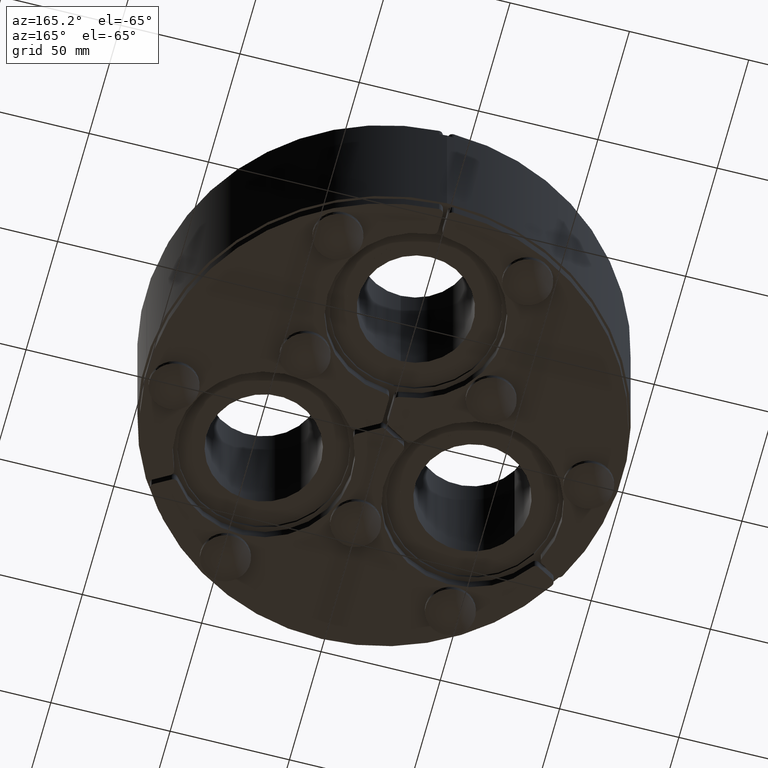
[diagram: clean part render]
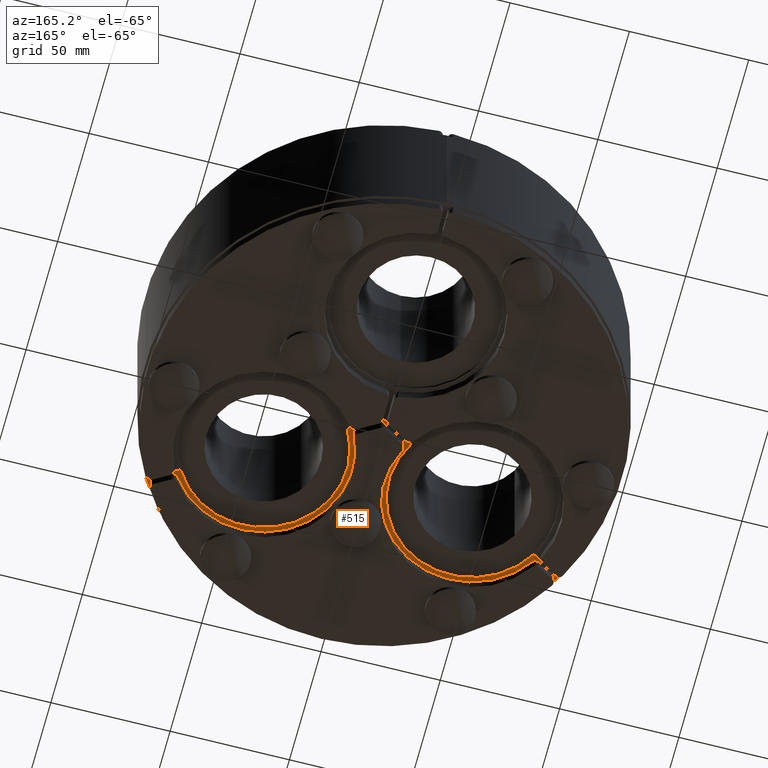
[diagram: same view with one face highlighted and labeled with its STEP entity id]
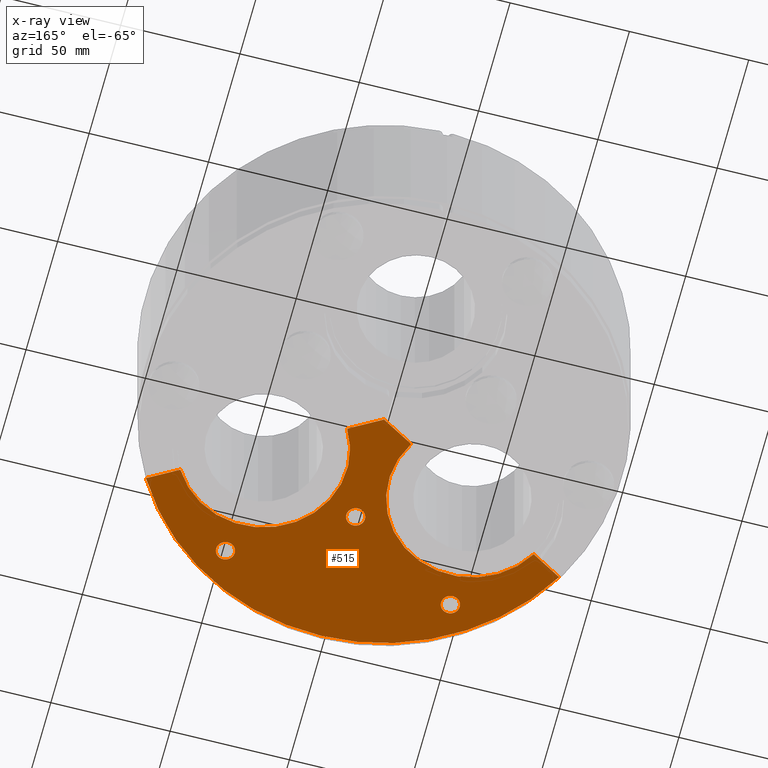
[diagram: x-ray of the same camera — body ghosted, the highlighted face saturated]
A machine part, auxiliary view. The second image highlights one B-rep face of the part: STEP entity #515.
The next image is the same camera in x-ray: the body ghosted, the highlighted face saturated — about 0% of this face is hidden behind the body in this view.
In plain terms, the highlighted planar face has unit normal (0, 0, 1).
Its self-contained STEP definition (entity closure, byte-faithful):
#190=CARTESIAN_POINT('',(-8.391542E-015,-5.884182E-014,-32.5));
#191=VERTEX_POINT('',#190);
#192=CARTESIAN_POINT('',(13.423393758658463,-7.749999999999854,-32.5));
#193=VERTEX_POINT('',#192);
#194=CARTESIAN_POINT('',(-7.105427E-015,-4.263256E-014,-32.499999999999993));
#195=DIRECTION('',(0.866025403784439,-0.5,0.0));
#196=VECTOR('',#195,15.499999999999615);
#197=LINE('',#194,#196);
#198=EDGE_CURVE('',#191,#193,#197,.T.);
#230=CARTESIAN_POINT('',(-74.045172023569634,-42.750000000000114,-32.5));
#231=VERTEX_POINT('',#230);
#240=CARTESIAN_POINT('',(-86.602540378444019,-50.000000000000128,-32.5));
#241=VERTEX_POINT('',#240);
#242=CARTESIAN_POINT('',(-86.602540378444004,-50.000000000000121,-32.5));
#243=DIRECTION('',(0.866025403784439,0.5,0.0));
#244=VECTOR('',#243,14.500000000000025);
#245=LINE('',#242,#244);
#246=EDGE_CURVE('',#241,#231,#245,.T.);
#270=CARTESIAN_POINT('',(86.602540378443507,-49.999999999999744,-32.5));
#271=VERTEX_POINT('',#270);
#280=CARTESIAN_POINT('',(74.045172023569222,-42.749999999999815,-32.5));
#281=VERTEX_POINT('',#280);
#282=CARTESIAN_POINT('',(74.045172023569222,-42.749999999999808,-32.499999999999993));
#283=DIRECTION('',(0.866025403784439,-0.499999999999999,0.0));
#284=VECTOR('',#283,14.499999999999902);
#285=LINE('',#282,#284);
#286=EDGE_CURVE('',#281,#271,#285,.T.);
#310=CARTESIAN_POINT('',(-13.423393758658936,-7.750000000000132,-32.5));
#311=VERTEX_POINT('',#310);
#312=CARTESIAN_POINT('',(-13.423393758658934,-7.750000000000136,-32.5));
#313=DIRECTION('',(0.866025403784439,0.5,0.0));
#314=VECTOR('',#313,15.500000000000146);
#315=LINE('',#312,#314);
#316=EDGE_CURVE('',#311,#191,#315,.T.);
#350=CARTESIAN_POINT('',(-3.730349E-013,2.309264E-013,-32.5));
#351=DIRECTION('',(0.0,0.0,-1.0));
#352=DIRECTION('',(0.866025403784439,-0.5,0.0));
#353=AXIS2_PLACEMENT_3D('',#350,#351,#352);
#354=CIRCLE('',#353,99.999999999999972);
#355=EDGE_CURVE('',#271,#241,#354,.T.);
#425=CARTESIAN_POINT('',(-43.228614294598785,-73.129294504124431,-32.5));
#426=VERTEX_POINT('',#425);
#427=CARTESIAN_POINT('',(-47.128614294598783,-73.129294504124431,-32.5));
#428=DIRECTION('',(0.0,0.0,1.0));
#429=DIRECTION('',(-1.0,0.0,0.0));
#430=AXIS2_PLACEMENT_3D('',#427,#428,#429);
#431=CIRCLE('',#430,3.9);
#432=EDGE_CURVE('',#426,#426,#431,.T.);
#445=CARTESIAN_POINT('',(51.028614294598079,-73.129294504124402,-32.5));
#446=VERTEX_POINT('',#445);
#447=CARTESIAN_POINT('',(47.12861429459808,-73.129294504124402,-32.5));
#448=DIRECTION('',(0.0,0.0,1.0));
#449=DIRECTION('',(-1.0,0.0,0.0));
#450=AXIS2_PLACEMENT_3D('',#447,#448,#449);
#451=CIRCLE('',#450,3.9);
#452=EDGE_CURVE('',#446,#446,#451,.T.);
#465=CARTESIAN_POINT('',(3.9,-45.0,-32.5));
#466=VERTEX_POINT('',#465);
#467=CARTESIAN_POINT('',(0.0,-45.0,-32.5));
#468=DIRECTION('',(0.0,0.0,1.0));
#469=DIRECTION('',(-1.0,0.0,0.0));
#470=AXIS2_PLACEMENT_3D('',#467,#468,#469);
#471=CIRCLE('',#470,3.9);
#472=EDGE_CURVE('',#466,#466,#471,.T.);
#480=CARTESIAN_POINT('',(-2.333131E-013,-57.072957745242519,-32.5));
#481=DIRECTION('',(0.0,0.0,1.0));
#482=DIRECTION('',(1.0,0.0,0.0));
#483=AXIS2_PLACEMENT_3D('',#480,#481,#482);
#484=PLANE('',#483);
#485=ORIENTED_EDGE('',*,*,#286,.T.);
#486=ORIENTED_EDGE('',*,*,#355,.T.);
#487=ORIENTED_EDGE('',*,*,#246,.T.);
#488=CARTESIAN_POINT('',(-43.734282891114447,-25.249999999999844,-32.5));
#489=DIRECTION('',(0.0,0.0,1.0));
#490=DIRECTION('',(0.870279304307706,0.492558557426115,0.0));
#491=AXIS2_PLACEMENT_3D('',#488,#489,#490);
#492=CIRCLE('',#491,34.999999999999993);
#493=EDGE_CURVE('',#231,#311,#492,.T.);
#494=ORIENTED_EDGE('',*,*,#493,.T.);
#495=ORIENTED_EDGE('',*,*,#316,.T.);
#496=ORIENTED_EDGE('',*,*,#198,.T.);
#497=CARTESIAN_POINT('',(43.734282891113843,-25.249999999999844,-32.5));
#498=DIRECTION('',(0.0,0.0,1.0));
#499=DIRECTION('',(0.86170787573628,-0.507404707205272,0.0));
#500=AXIS2_PLACEMENT_3D('',#497,#498,#499);
#501=CIRCLE('',#500,35.000000000000007);
#502=EDGE_CURVE('',#193,#281,#501,.T.);
#503=ORIENTED_EDGE('',*,*,#502,.T.);
#504=EDGE_LOOP('',(#485,#486,#487,#494,#495,#496,#503));
#505=FACE_OUTER_BOUND('',#504,.T.);
#506=ORIENTED_EDGE('',*,*,#432,.T.);
#507=EDGE_LOOP('',(#506));
#508=FACE_BOUND('',#507,.T.);
#509=ORIENTED_EDGE('',*,*,#452,.T.);
#510=EDGE_LOOP('',(#509));
#511=FACE_BOUND('',#510,.T.);
#512=ORIENTED_EDGE('',*,*,#472,.T.);
#513=EDGE_LOOP('',(#512));
#514=FACE_BOUND('',#513,.T.);
#515=ADVANCED_FACE('',(#505,#508,#511,#514),#484,.F.);